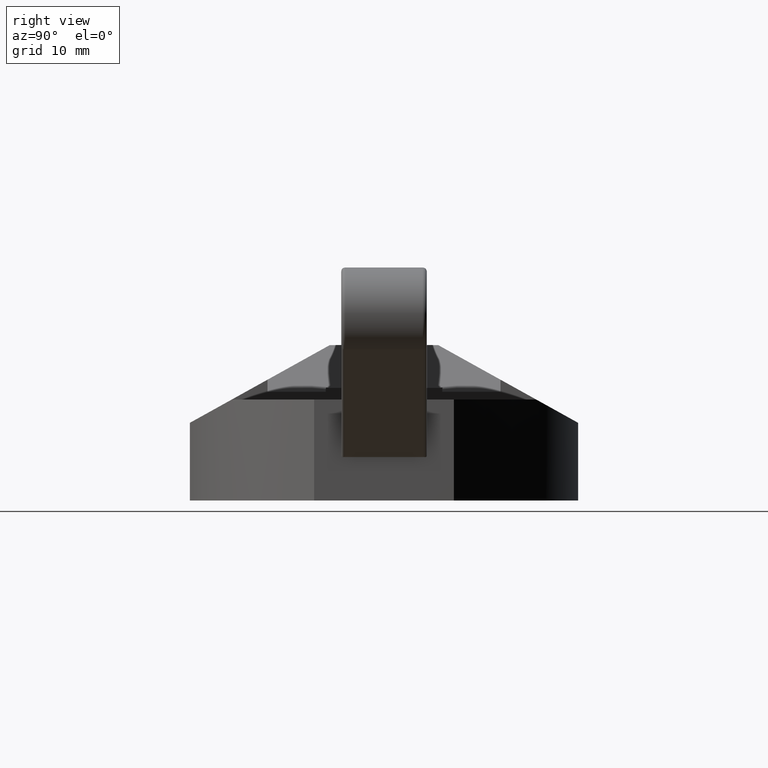
[diagram: clean part render]
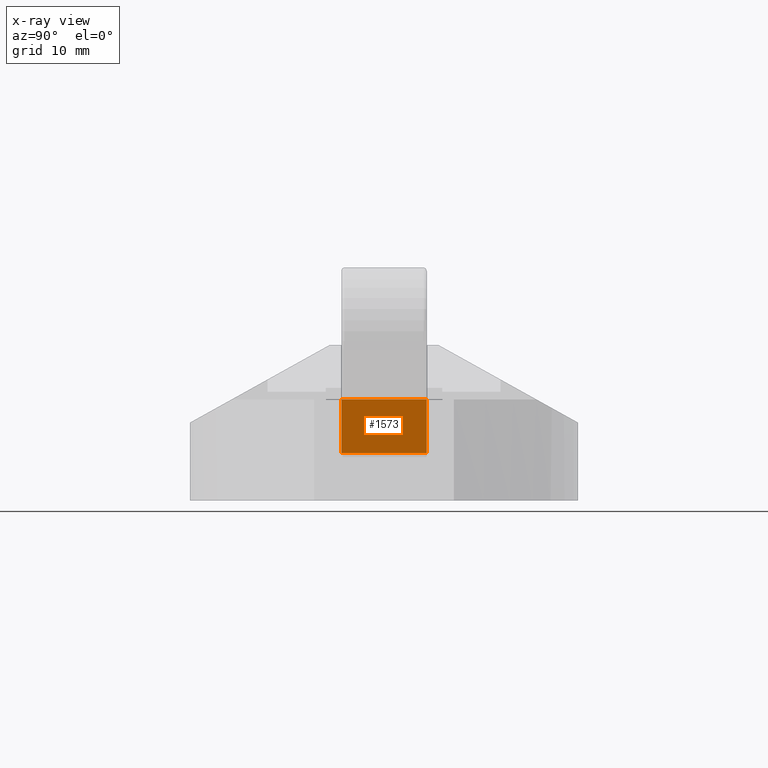
[diagram: x-ray — body ghosted, one internal face saturated and labeled with its STEP entity id]
A machine part, right view, then the same camera in x-ray: the body is ghosted and one INTERNAL B-rep face — a face not visible from any outside direction — is saturated and labeled: STEP entity #1573.
In plain terms, the highlighted planar face has unit normal (1, 0, 0).
Its self-contained STEP definition (entity closure, byte-faithful):
#73=PLANE('',#1721);
#134=FACE_OUTER_BOUND('',#234,.T.);
#234=EDGE_LOOP('',(#1242,#1243,#1244,#1245));
#343=LINE('',#2505,#477);
#345=LINE('',#2511,#479);
#357=LINE('',#2547,#491);
#371=LINE('',#2585,#505);
#477=VECTOR('',#1978,1000.);
#479=VECTOR('',#1984,1000.);
#491=VECTOR('',#2010,1000.);
#505=VECTOR('',#2038,1000.);
#700=VERTEX_POINT('',#2502);
#701=VERTEX_POINT('',#2504);
#703=VERTEX_POINT('',#2510);
#720=VERTEX_POINT('',#2546);
#868=EDGE_CURVE('',#701,#700,#343,.T.);
#871=EDGE_CURVE('',#701,#703,#345,.T.);
#889=EDGE_CURVE('',#700,#720,#357,.T.);
#909=EDGE_CURVE('',#703,#720,#371,.T.);
#1242=ORIENTED_EDGE('',*,*,#871,.F.);
#1243=ORIENTED_EDGE('',*,*,#868,.T.);
#1244=ORIENTED_EDGE('',*,*,#889,.T.);
#1245=ORIENTED_EDGE('',*,*,#909,.F.);
#1573=ADVANCED_FACE('',(#134),#73,.F.);
#1721=AXIS2_PLACEMENT_3D('',#2628,#2077,#2078);
#1978=DIRECTION('',(0.,-1.,0.));
#1984=DIRECTION('',(0.,0.,1.));
#2010=DIRECTION('',(0.,0.,1.));
#2038=DIRECTION('',(0.,-1.,0.));
#2077=DIRECTION('center_axis',(1.,0.,0.));
#2078=DIRECTION('ref_axis',(0.,0.,-1.));
#2502=CARTESIAN_POINT('',(55.,-5.5,6.0848976518656));
#2504=CARTESIAN_POINT('',(55.,5.5,6.0848976518656));
#2505=CARTESIAN_POINT('',(55.,5.5,6.0848976518656));
#2510=CARTESIAN_POINT('',(55.,5.5,13.));
#2511=CARTESIAN_POINT('',(55.,5.5,13.));
#2546=CARTESIAN_POINT('',(55.,-5.5,13.));
#2547=CARTESIAN_POINT('',(55.,-5.5,13.));
#2585=CARTESIAN_POINT('',(55.,5.5,13.));
#2628=CARTESIAN_POINT('Origin',(55.,5.5,13.));